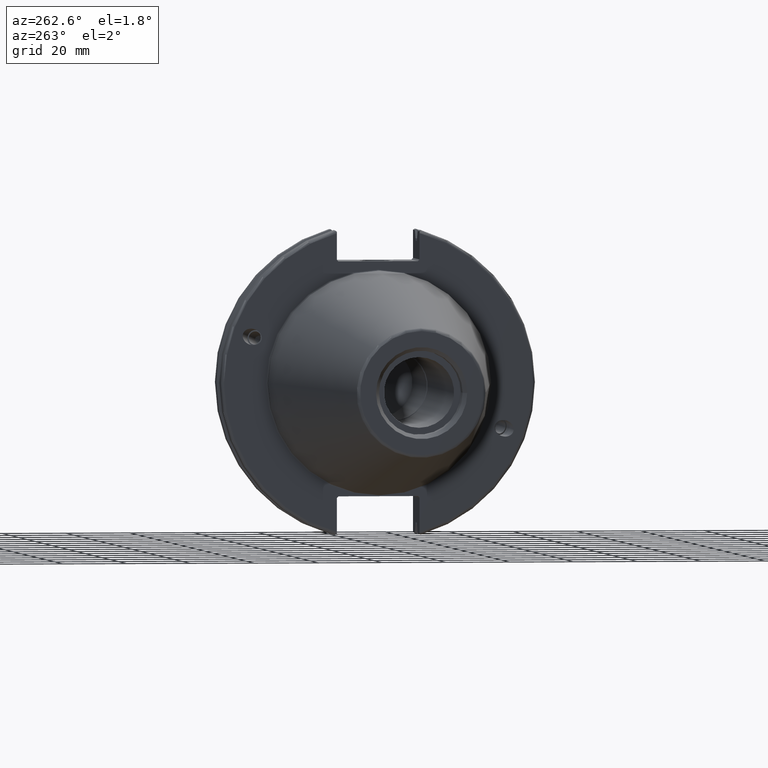
[diagram: clean part render]
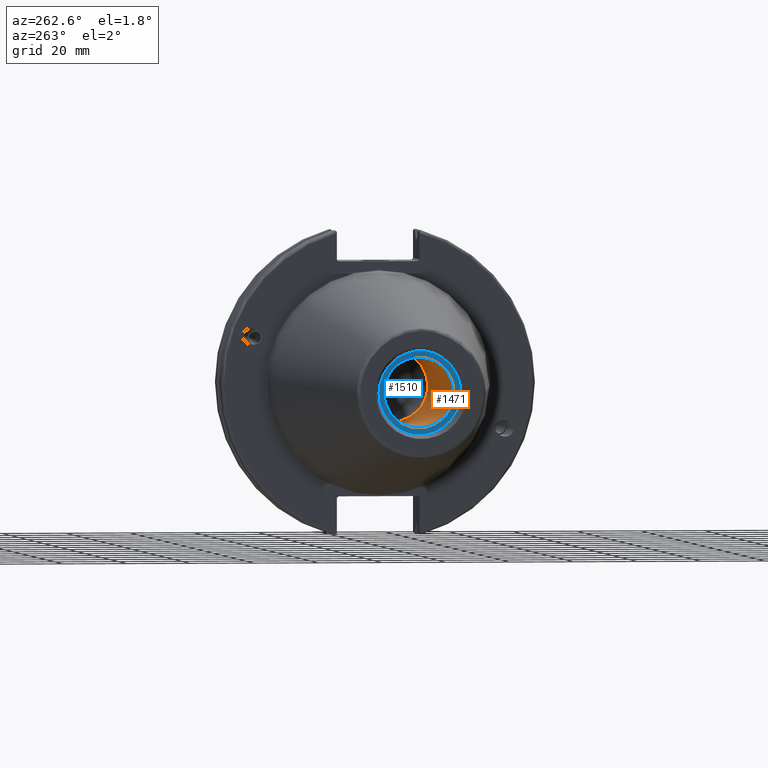
[diagram: same view with the hole feature highlighted: cylindrical wall and planar end face, labeled with their STEP entity ids]
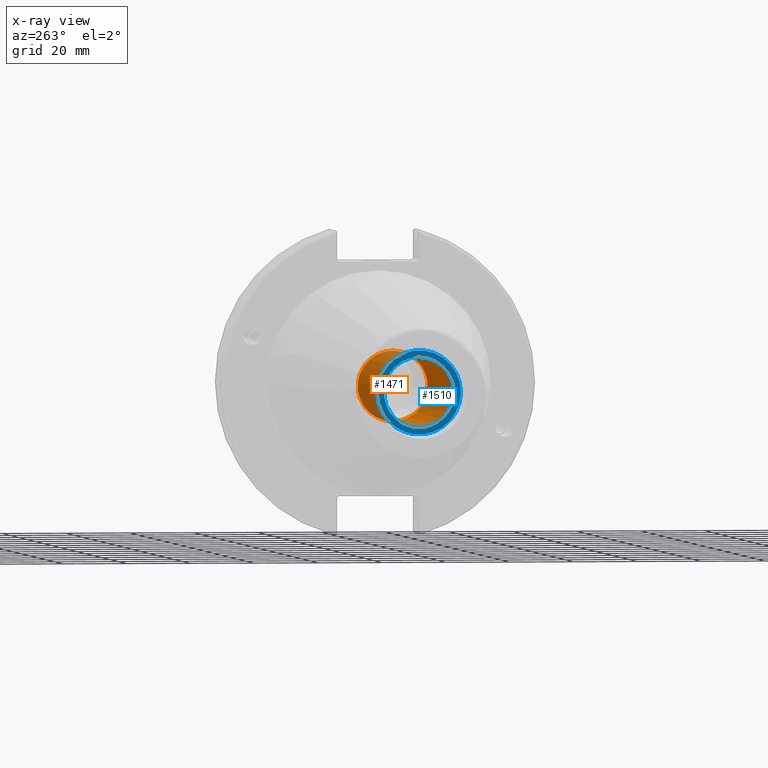
[diagram: x-ray of the same camera — body ghosted, the hole faces saturated]
A machine part, auxiliary view. The highlighted faces form one hole feature of diameter 21.971 mm: the cylindrical wall (entity #1471, orange) and its adjacent planar end face (entity #1510, blue) — they share a circular edge in the B-rep.
The next image is the same camera in x-ray (body ghosted, the hole faces saturated) — the bore reads through the body.
Wall:
#132=LINE('',#2727,#224);
#224=VECTOR('',#1917,10.9855);
#288=CYLINDRICAL_SURFACE('',#1624,10.9855);
#388=FACE_OUTER_BOUND('',#484,.T.);
#484=EDGE_LOOP('',(#1177,#1178,#1179,#1180));
#580=CIRCLE('',#1623,10.9855);
#581=CIRCLE('',#1625,10.9855);
#701=VERTEX_POINT('',#2721);
#702=VERTEX_POINT('',#2725);
#877=EDGE_CURVE('',#701,#701,#580,.T.);
#879=EDGE_CURVE('',#702,#702,#581,.T.);
#880=EDGE_CURVE('',#702,#701,#132,.T.);
#1177=ORIENTED_EDGE('',*,*,#879,.F.);
#1178=ORIENTED_EDGE('',*,*,#880,.T.);
#1179=ORIENTED_EDGE('',*,*,#877,.F.);
#1180=ORIENTED_EDGE('',*,*,#880,.F.);
#1471=ADVANCED_FACE('',(#388),#288,.F.);
#1623=AXIS2_PLACEMENT_3D('',#2722,#1910,#1911);
#1624=AXIS2_PLACEMENT_3D('',#2724,#1913,#1914);
#1625=AXIS2_PLACEMENT_3D('',#2726,#1915,#1916);
#1910=DIRECTION('center_axis',(-1.,0.,0.));
#1911=DIRECTION('ref_axis',(0.,0.,1.));
#1913=DIRECTION('center_axis',(-1.,0.,0.));
#1914=DIRECTION('ref_axis',(0.,0.,1.));
#1915=DIRECTION('center_axis',(1.,0.,0.));
#1916=DIRECTION('ref_axis',(0.,0.,1.));
#1917=DIRECTION('',(1.,0.,0.));
#2721=CARTESIAN_POINT('',(-31.6,-1.34533574120333E-15,-10.9855));
#2722=CARTESIAN_POINT('Origin',(-31.6,0.,0.));
#2724=CARTESIAN_POINT('Origin',(-66.6,0.,0.));
#2725=CARTESIAN_POINT('',(-95.25,1.34533574120333E-15,-10.9855));
#2726=CARTESIAN_POINT('Origin',(-95.25,0.,0.));
#2727=CARTESIAN_POINT('',(-66.6,-1.34533574120333E-15,-10.9855));
End face:
#315=FACE_BOUND('',#529,.T.);
#348=PLANE('',#1688);
#427=FACE_OUTER_BOUND('',#528,.T.);
#528=EDGE_LOOP('',(#1391));
#529=EDGE_LOOP('',(#1392));
#581=CIRCLE('',#1625,10.9855);
#606=CIRCLE('',#1689,13.1);
#702=VERTEX_POINT('',#2725);
#757=VERTEX_POINT('',#3025);
#879=EDGE_CURVE('',#702,#702,#581,.T.);
#973=EDGE_CURVE('',#757,#757,#606,.T.);
#1391=ORIENTED_EDGE('',*,*,#973,.F.);
#1392=ORIENTED_EDGE('',*,*,#879,.T.);
#1510=ADVANCED_FACE('',(#427,#315),#348,.T.);
#1625=AXIS2_PLACEMENT_3D('',#2726,#1915,#1916);
#1688=AXIS2_PLACEMENT_3D('',#3024,#2086,#2087);
#1689=AXIS2_PLACEMENT_3D('',#3026,#2088,#2089);
#1915=DIRECTION('center_axis',(1.,0.,0.));
#1916=DIRECTION('ref_axis',(0.,0.,1.));
#2086=DIRECTION('center_axis',(-1.,0.,0.));
#2087=DIRECTION('ref_axis',(0.,0.,1.));
#2088=DIRECTION('center_axis',(1.,0.,0.));
#2089=DIRECTION('ref_axis',(0.,0.,-1.));
#2725=CARTESIAN_POINT('',(-95.25,1.34533574120333E-15,-10.9855));
#2726=CARTESIAN_POINT('Origin',(-95.25,0.,0.));
#3024=CARTESIAN_POINT('Origin',(-95.25,13.1,0.));
#3025=CARTESIAN_POINT('',(-95.25,-13.1,-1.60428730688303E-15));
#3026=CARTESIAN_POINT('Origin',(-95.25,0.,0.));